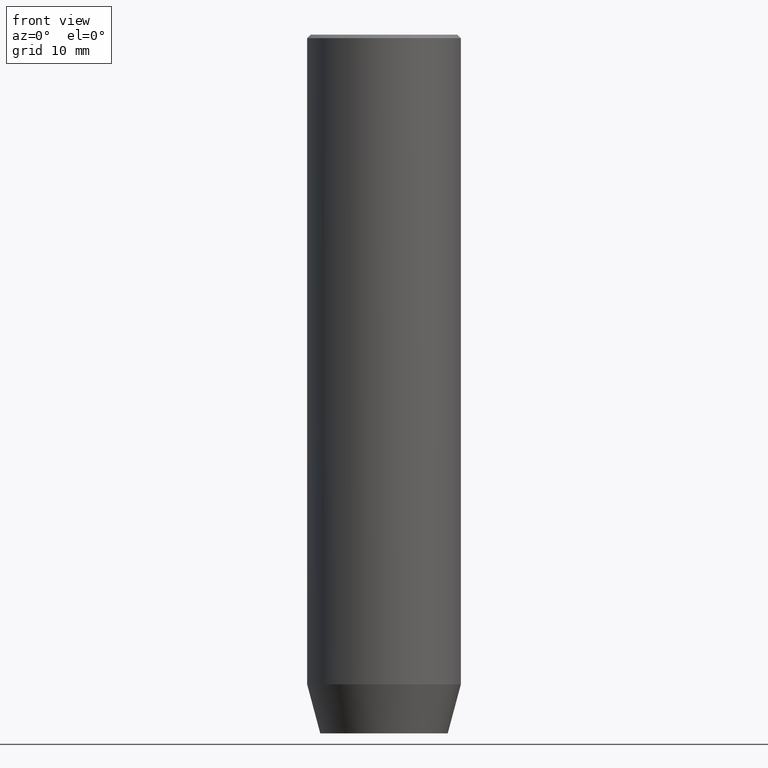
[diagram: clean part render]
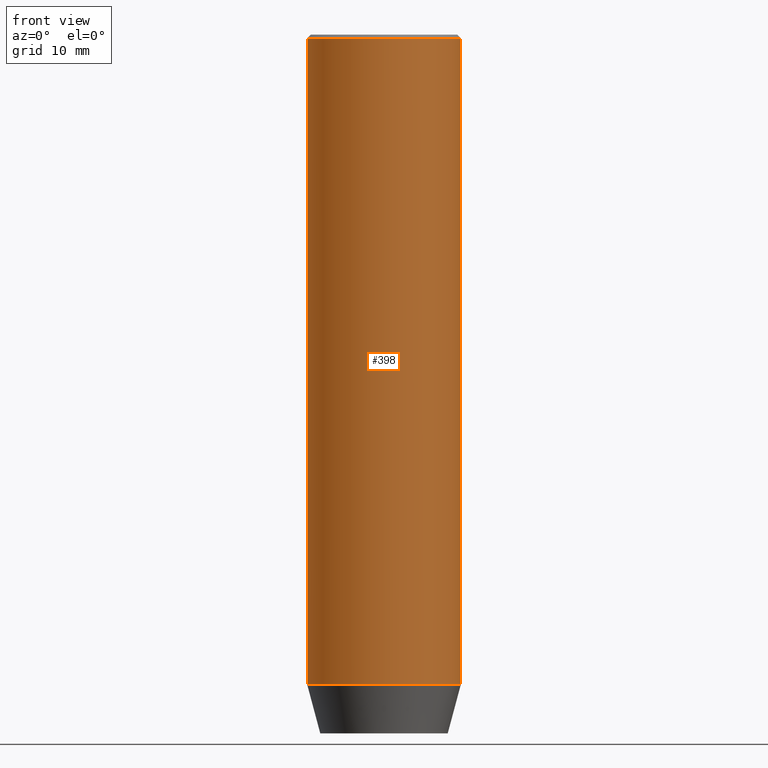
[diagram: same view with one face highlighted and labeled with its STEP entity id]
A machine part, front view. The second image highlights one B-rep face of the part: STEP entity #398.
In plain terms, the highlighted cylindrical surface (partial cylindrical patch) has radius 11 mm, axis along (-0, -0, 1).
Its self-contained STEP definition (entity closure, byte-faithful):
#7 = ORIENTED_EDGE ( 'NONE', *, *, #49, .F. ) ;
#17 = CARTESIAN_POINT ( 'NONE',  ( -11.00000000000000000, 1.347111479062088405E-15, -0.5000000000000004441 ) ) ;
#30 = DIRECTION ( 'NONE',  ( -0.000000000000000000, -0.000000000000000000, 1.000000000000000000 ) ) ;
#49 = EDGE_CURVE ( 'NONE', #429, #470, #482, .T. ) ;
#80 = DIRECTION ( 'NONE',  ( 1.000000000000000000, 0.000000000000000000, 0.000000000000000000 ) ) ;
#98 = FACE_OUTER_BOUND ( 'NONE', #534, .T. ) ;
#106 = VERTEX_POINT ( 'NONE', #366 ) ;
#117 = CIRCLE ( 'NONE', #197, 11.00000000000000000 ) ;
#147 = DIRECTION ( 'NONE',  ( 1.000000000000000000, 0.000000000000000000, 0.000000000000000000 ) ) ;
#154 = ORIENTED_EDGE ( 'NONE', *, *, #235, .T. ) ;
#161 = CARTESIAN_POINT ( 'NONE',  ( 11.00000000000000000, 0.000000000000000000, -0.5000000000000004441 ) ) ;
#163 = LINE ( 'NONE', #345, #508 ) ;
#180 = AXIS2_PLACEMENT_3D ( 'NONE', #459, #492, #147 ) ;
#197 = AXIS2_PLACEMENT_3D ( 'NONE', #361, #445, #80 ) ;
#224 = DIRECTION ( 'NONE',  ( -0.000000000000000000, -0.000000000000000000, 1.000000000000000000 ) ) ;
#234 = EDGE_CURVE ( 'NONE', #106, #510, #163, .T. ) ;
#235 = EDGE_CURVE ( 'NONE', #510, #470, #117, .T. ) ;
#258 = CARTESIAN_POINT ( 'NONE',  ( 0.000000000000000000, 0.000000000000000000, -93.00000000000000000 ) ) ;
#274 = ORIENTED_EDGE ( 'NONE', *, *, #234, .T. ) ;
#296 = ORIENTED_EDGE ( 'NONE', *, *, #462, .T. ) ;
#345 = CARTESIAN_POINT ( 'NONE',  ( 11.00000000000000000, 0.000000000000000000, 0.000000000000000000 ) ) ;
#361 = CARTESIAN_POINT ( 'NONE',  ( 0.000000000000000000, 0.000000000000000000, -0.5000000000000004441 ) ) ;
#366 = CARTESIAN_POINT ( 'NONE',  ( 11.00000000000000000, 0.000000000000000000, -93.00000000000000000 ) ) ;
#384 = CIRCLE ( 'NONE', #520, 11.00000000000000000 ) ;
#397 = DIRECTION ( 'NONE',  ( 1.000000000000000000, 0.000000000000000000, 0.000000000000000000 ) ) ;
#398 = ADVANCED_FACE ( 'NONE', ( #98 ), #582, .T. ) ;
#426 = DIRECTION ( 'NONE',  ( -0.000000000000000000, -0.000000000000000000, 1.000000000000000000 ) ) ;
#429 = VERTEX_POINT ( 'NONE', #503 ) ;
#445 = DIRECTION ( 'NONE',  ( 0.000000000000000000, 0.000000000000000000, -1.000000000000000000 ) ) ;
#459 = CARTESIAN_POINT ( 'NONE',  ( 0.000000000000000000, 0.000000000000000000, 0.000000000000000000 ) ) ;
#462 = EDGE_CURVE ( 'NONE', #429, #106, #384, .T. ) ;
#470 = VERTEX_POINT ( 'NONE', #17 ) ;
#482 = LINE ( 'NONE', #562, #484 ) ;
#484 = VECTOR ( 'NONE', #224, 1000.000000000000000 ) ;
#492 = DIRECTION ( 'NONE',  ( -0.000000000000000000, -0.000000000000000000, 1.000000000000000000 ) ) ;
#503 = CARTESIAN_POINT ( 'NONE',  ( -11.00000000000000000, 1.347111479062088405E-15, -93.00000000000000000 ) ) ;
#508 = VECTOR ( 'NONE', #30, 1000.000000000000000 ) ;
#510 = VERTEX_POINT ( 'NONE', #161 ) ;
#520 = AXIS2_PLACEMENT_3D ( 'NONE', #258, #426, #397 ) ;
#534 = EDGE_LOOP ( 'NONE', ( #7, #296, #274, #154 ) ) ;
#562 = CARTESIAN_POINT ( 'NONE',  ( -11.00000000000000000, 1.347111479062088405E-15, 0.000000000000000000 ) ) ;
#582 = CYLINDRICAL_SURFACE ( 'NONE', #180, 11.00000000000000000 ) ;